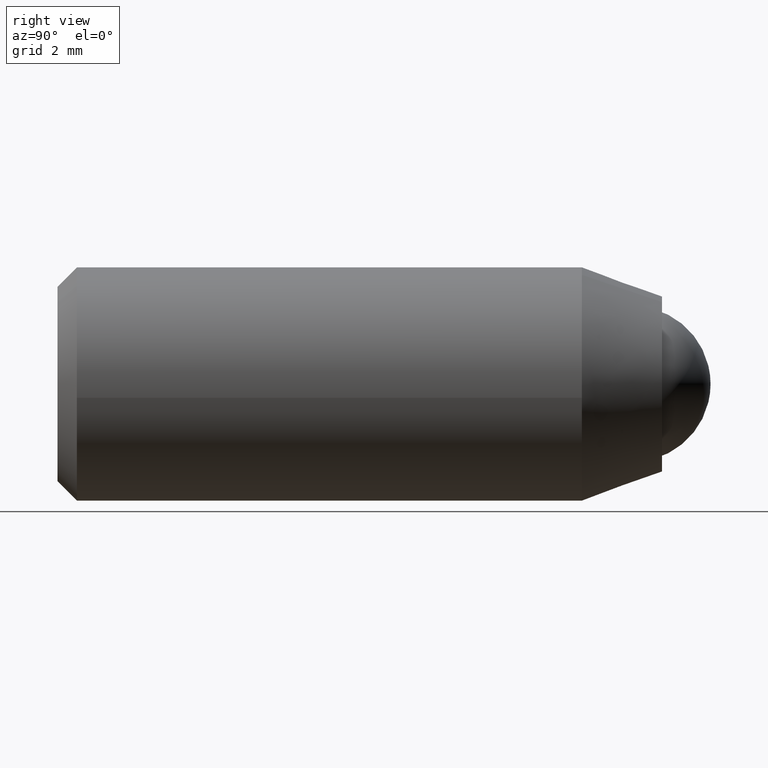
[diagram: clean part render]
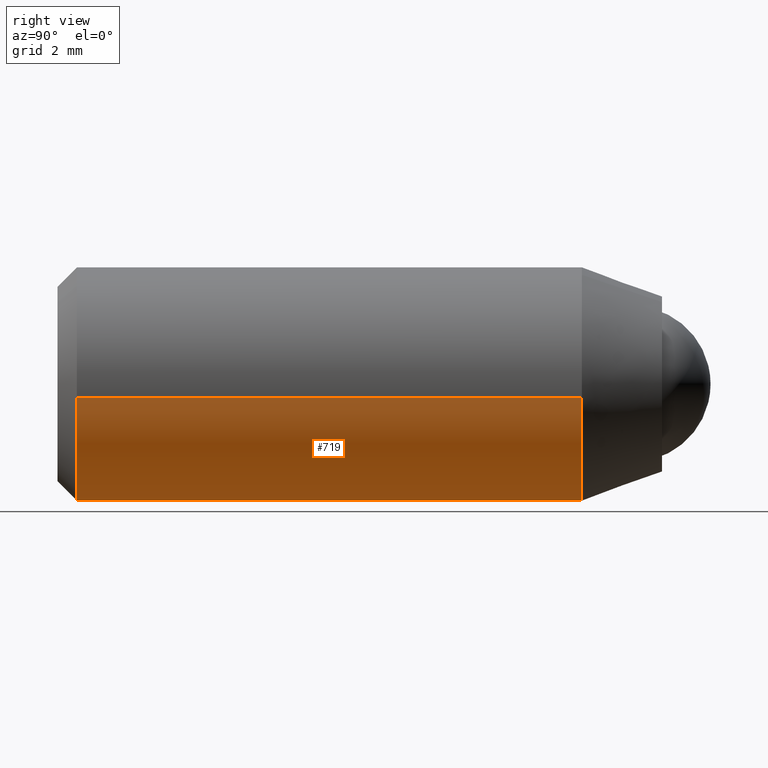
[diagram: same view with one face highlighted and labeled with its STEP entity id]
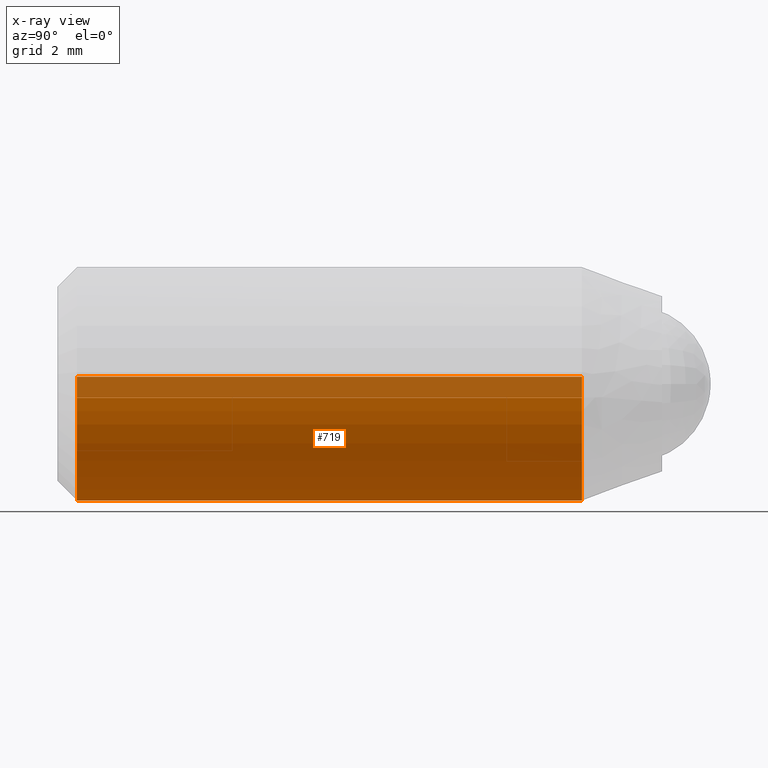
[diagram: x-ray of the same camera — body ghosted, the highlighted face saturated]
A machine part, right view. The second image highlights one B-rep face of the part: STEP entity #719.
The next image is the same camera in x-ray: the body ghosted, the highlighted face saturated — about 17% of this face is hidden behind the body in this view.
In plain terms, the highlighted face is a freeform B-spline surface patch.
Its self-contained STEP definition (entity closure, byte-faithful):
#256=CARTESIAN_POINT('',(2.979028827039997,-15.050000000000001,-0.354100617989129));
#257=VERTEX_POINT('',#256);
#323=CARTESIAN_POINT('',(-2.994404631648551,-15.049999999999990,0.183141753695629));
#324=VERTEX_POINT('',#323);
#338=CARTESIAN_POINT('',(0.0,-15.050000000000001,-3.000000000000001));
#339=VERTEX_POINT('',#338);
#340=CARTESIAN_POINT('',(-2.994404631648550,-15.049999999999997,0.183141753695629));
#341=CARTESIAN_POINT('',(-3.0,-15.050000000000001,0.091656352023072));
#342=CARTESIAN_POINT('',(-3.0,-15.050000000000001,-6.765950E-016));
#343=CARTESIAN_POINT('',(-3.0,-15.049999999999999,-3.0));
#344=CARTESIAN_POINT('',(0.0,-15.050000000000001,-3.000000000000001));
#352=(BOUNDED_CURVE()B_SPLINE_CURVE(2,(#340,#341,#342,#343,#344),.UNSPECIFIED.,.F.,.U.)B_SPLINE_CURVE_WITH_KNOTS((3,2,3),(0.739333184949944,0.750000000000000,1.0),.UNSPECIFIED.)CURVE()GEOMETRIC_REPRESENTATION_ITEM()RATIONAL_B_SPLINE_CURVE((0.976072518979253,0.987503048822005,1.0,0.707106781186548,1.0))REPRESENTATION_ITEM(''));
#353=EDGE_CURVE('',#324,#339,#352,.T.);
#355=CARTESIAN_POINT('',(0.0,-15.050000000000001,-3.000000000000001));
#356=CARTESIAN_POINT('',(2.664525456746725,-15.050000000000004,-3.000000000000001));
#357=CARTESIAN_POINT('',(2.979028827039997,-15.050000000000002,-0.354100617989129));
#365=(BOUNDED_CURVE()B_SPLINE_CURVE(2,(#355,#356,#357),.UNSPECIFIED.,.F.,.U.)B_SPLINE_CURVE_WITH_KNOTS((3,3),(0.0,0.229562591855431),.UNSPECIFIED.)CURVE()GEOMETRIC_REPRESENTATION_ITEM()RATIONAL_B_SPLINE_CURVE((1.0,0.731050694209216,0.956026986138842))REPRESENTATION_ITEM(''));
#366=EDGE_CURVE('',#339,#257,#365,.T.);
#522=CARTESIAN_POINT('',(-2.994404511037095,-2.060607997349454,0.183143709914920));
#523=VERTEX_POINT('',#522);
#567=CARTESIAN_POINT('',(2.979028823977284,-2.060608000000000,-0.354100643755718));
#568=VERTEX_POINT('',#567);
#584=CARTESIAN_POINT('',(0.0,-2.060608000000000,-3.000000000000001));
#585=VERTEX_POINT('',#584);
#586=CARTESIAN_POINT('',(0.0,-2.060608000000000,-3.000000000000001));
#587=CARTESIAN_POINT('',(2.664525433538144,-2.060608000000000,-3.000000000000001));
#588=CARTESIAN_POINT('',(2.979028823977285,-2.060608000000001,-0.354100643755718));
#596=(BOUNDED_CURVE()B_SPLINE_CURVE(2,(#586,#587,#588),.UNSPECIFIED.,.F.,.U.)B_SPLINE_CURVE_WITH_KNOTS((3,3),(0.0,0.229562590393667),.UNSPECIFIED.)CURVE()GEOMETRIC_REPRESENTATION_ITEM()RATIONAL_B_SPLINE_CURVE((1.0,0.731050695921779,0.956026983273721))REPRESENTATION_ITEM(''));
#597=EDGE_CURVE('',#585,#568,#596,.T.);
#599=CARTESIAN_POINT('',(-2.994404511037095,-2.060607997349454,0.183143709914921));
#600=CARTESIAN_POINT('',(-3.000000000000000,-2.060608000000000,0.091657332904665));
#601=CARTESIAN_POINT('',(-3.0,-2.060608000000000,-6.765950E-016));
#602=CARTESIAN_POINT('',(-3.0,-2.060607999999999,-3.0));
#603=CARTESIAN_POINT('',(0.0,-2.060608000000000,-3.000000000000001));
#611=(BOUNDED_CURVE()B_SPLINE_CURVE(2,(#599,#600,#601,#602,#603),.UNSPECIFIED.,.F.,.U.)B_SPLINE_CURVE_WITH_KNOTS((3,2,3),(0.739333072223147,0.750000000000000,1.0),.UNSPECIFIED.)CURVE()GEOMETRIC_REPRESENTATION_ITEM()RATIONAL_B_SPLINE_CURVE((0.976072277383916,0.987502916754347,1.0,0.707106781186548,1.0))REPRESENTATION_ITEM(''));
#612=EDGE_CURVE('',#523,#585,#611,.T.);
#674=CARTESIAN_POINT('',(2.979028823977284,-2.060608000000000,-0.354100643755718));
#675=CARTESIAN_POINT('',(2.979028827039997,-15.050000000000001,-0.354100617989129));
#676=QUASI_UNIFORM_CURVE('',1,(#674,#675),.UNSPECIFIED.,.F.,.U.);
#677=EDGE_CURVE('',#568,#257,#676,.T.);
#682=CARTESIAN_POINT('',(-2.994404511037095,-2.060607997349454,0.183143709914920));
#683=CARTESIAN_POINT('',(-2.994404631648551,-15.049999999999990,0.183141753695629));
#684=QUASI_UNIFORM_CURVE('',1,(#682,#683),.UNSPECIFIED.,.F.,.U.);
#685=EDGE_CURVE('',#523,#324,#684,.T.);
#693=CARTESIAN_POINT('',(-2.994404395265600,-1.735873199999999,0.183145618604570));
#694=CARTESIAN_POINT('',(-3.177550013870171,-1.735873200000000,-2.811258776661029));
#695=CARTESIAN_POINT('',(-0.183145618604571,-1.735873199999999,-2.994404395265601));
#696=CARTESIAN_POINT('',(2.644630472518504,-1.735873199999999,-3.167358590197583));
#697=CARTESIAN_POINT('',(2.979028579091000,-1.735873199999999,-0.354102703970276));
#698=CARTESIAN_POINT('',(-2.994404395265600,-15.382853170000001,0.183145618604570));
#699=CARTESIAN_POINT('',(-3.177550013870171,-15.382853170000001,-2.811258776661029));
#700=CARTESIAN_POINT('',(-0.183145618604571,-15.382853170000001,-2.994404395265601));
#701=CARTESIAN_POINT('',(2.644630472518504,-15.382853169999997,-3.167358590197583));
#702=CARTESIAN_POINT('',(2.979028579091000,-15.382853169999997,-0.354102703970276));
#710=(BOUNDED_SURFACE()B_SPLINE_SURFACE(2,1,((#693,#698),(#694,#699),(#695,#700),(#696,#701),(#697,#702)),.UNSPECIFIED.,.F.,.F.,.U.)B_SPLINE_SURFACE_WITH_KNOTS((3,2,3),(2,2),(0.0,4.970562748477139,9.742302987015194),(0.0,13.646979970000000),.UNSPECIFIED.)GEOMETRIC_REPRESENTATION_ITEM()RATIONAL_B_SPLINE_SURFACE(((1.0,1.0),(0.707106781186548,0.707106781186548),(1.0,1.0),(0.718822509939086,0.718822509939086),(0.977505800795127,0.977505800795127)))REPRESENTATION_ITEM('')SURFACE());
#711=ORIENTED_EDGE('',*,*,#366,.F.);
#712=ORIENTED_EDGE('',*,*,#353,.F.);
#713=ORIENTED_EDGE('',*,*,#685,.F.);
#714=ORIENTED_EDGE('',*,*,#612,.T.);
#715=ORIENTED_EDGE('',*,*,#597,.T.);
#716=ORIENTED_EDGE('',*,*,#677,.T.);
#717=EDGE_LOOP('',(#711,#712,#713,#714,#715,#716));
#718=FACE_OUTER_BOUND('',#717,.T.);
#719=ADVANCED_FACE('',(#718),#710,.T.);